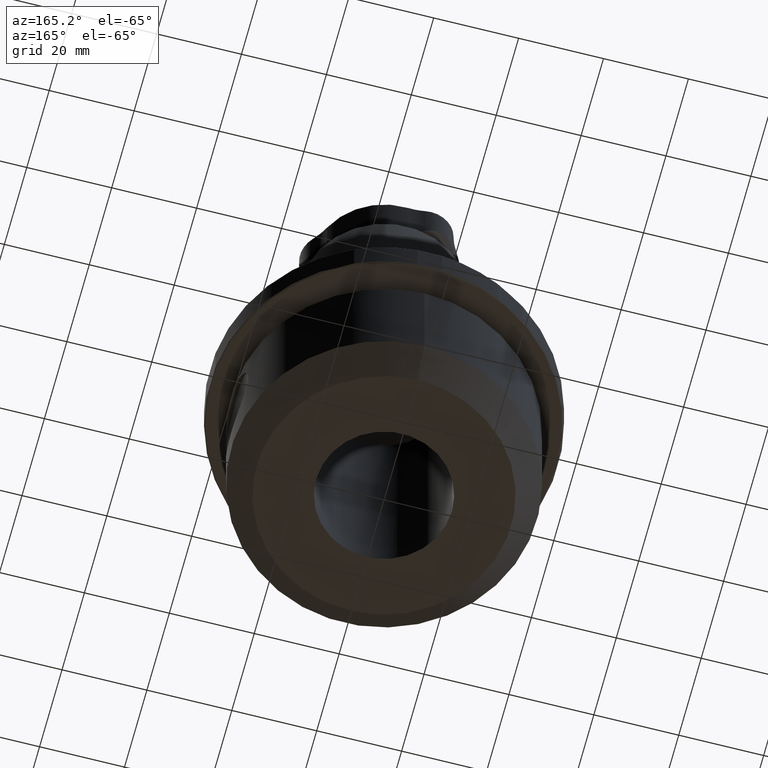
[diagram: clean part render]
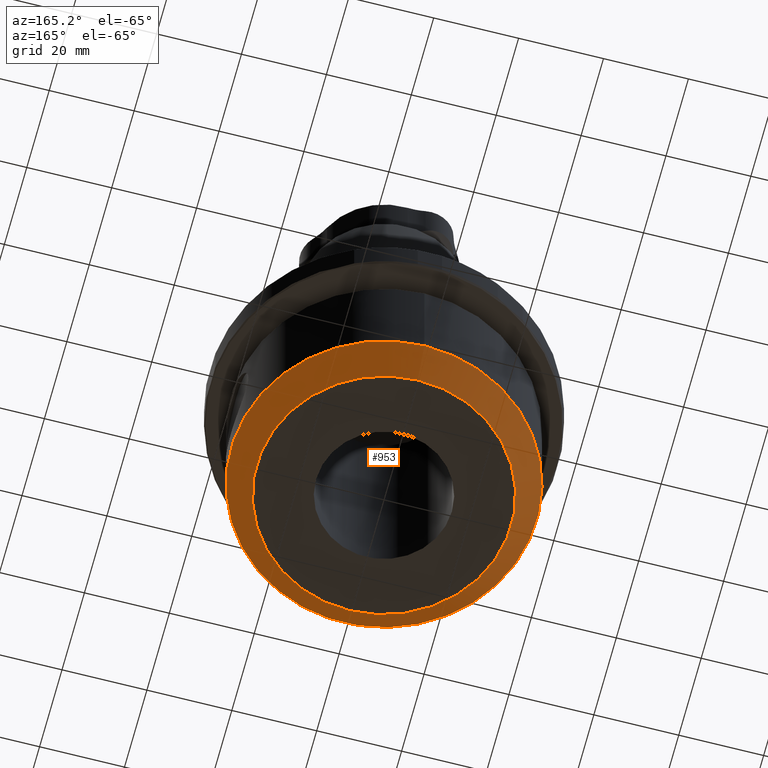
[diagram: same view with one face highlighted and labeled with its STEP entity id]
A machine part, auxiliary view. The second image highlights one B-rep face of the part: STEP entity #953.
In plain terms, the highlighted conical surface has half-angle 45 deg.
Its self-contained STEP definition (entity closure, byte-faithful):
#94=CONICAL_SURFACE('',#1082,30.,0.78539816339745);
#113=CIRCLE('',#975,36.);
#163=CIRCLE('',#1081,30.);
#402=ORIENTED_EDGE('',*,*,#416,.T.);
#403=ORIENTED_EDGE('',*,*,#535,.F.);
#416=EDGE_CURVE('',#540,#540,#113,.T.);
#535=EDGE_CURVE('',#628,#628,#163,.T.);
#540=VERTEX_POINT('',#1384);
#628=VERTEX_POINT('',#1809);
#758=EDGE_LOOP('',(#402));
#759=EDGE_LOOP('',(#403));
#855=FACE_BOUND('',#758,.T.);
#856=FACE_BOUND('',#759,.T.);
#953=ADVANCED_FACE('',(#855,#856),#94,.T.);
#975=AXIS2_PLACEMENT_3D('',#1383,#1097,#1098);
#1081=AXIS2_PLACEMENT_3D('',#1808,#1337,#1338);
#1082=AXIS2_PLACEMENT_3D('',#1810,#1339,#1340);
#1097=DIRECTION('',(0.,0.,-1.));
#1098=DIRECTION('',(0.,1.,0.));
#1337=DIRECTION('',(0.,0.,-1.));
#1338=DIRECTION('',(0.,1.,0.));
#1339=DIRECTION('',(0.,0.,1.));
#1340=DIRECTION('',(0.,-1.,0.));
#1383=CARTESIAN_POINT('',(0.,0.,-41.));
#1384=CARTESIAN_POINT('',(0.,36.,-41.));
#1808=CARTESIAN_POINT('',(0.,0.,-47.));
#1809=CARTESIAN_POINT('',(0.,30.,-47.));
#1810=CARTESIAN_POINT('',(0.,0.,-47.));